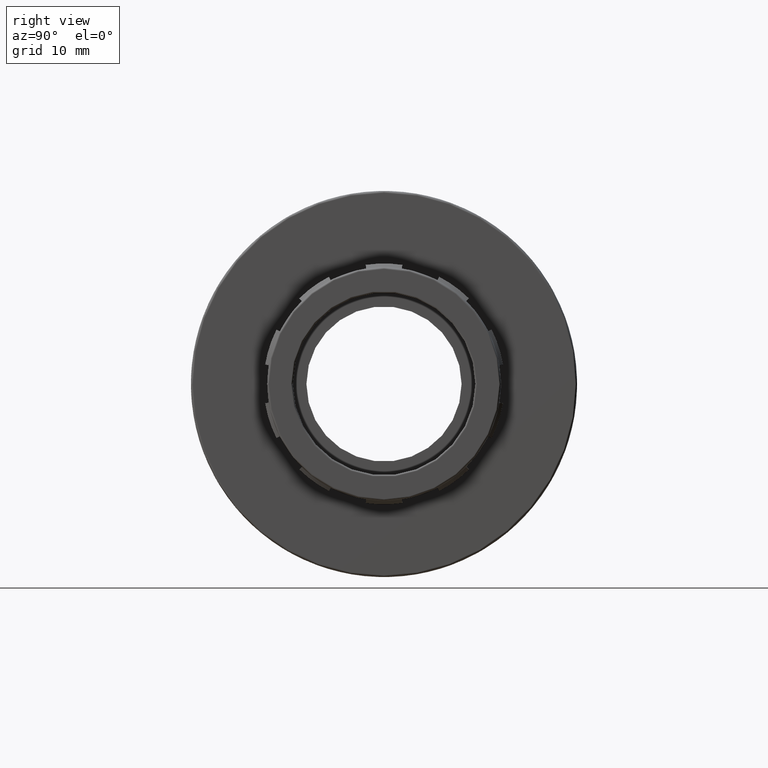
[diagram: clean part render]
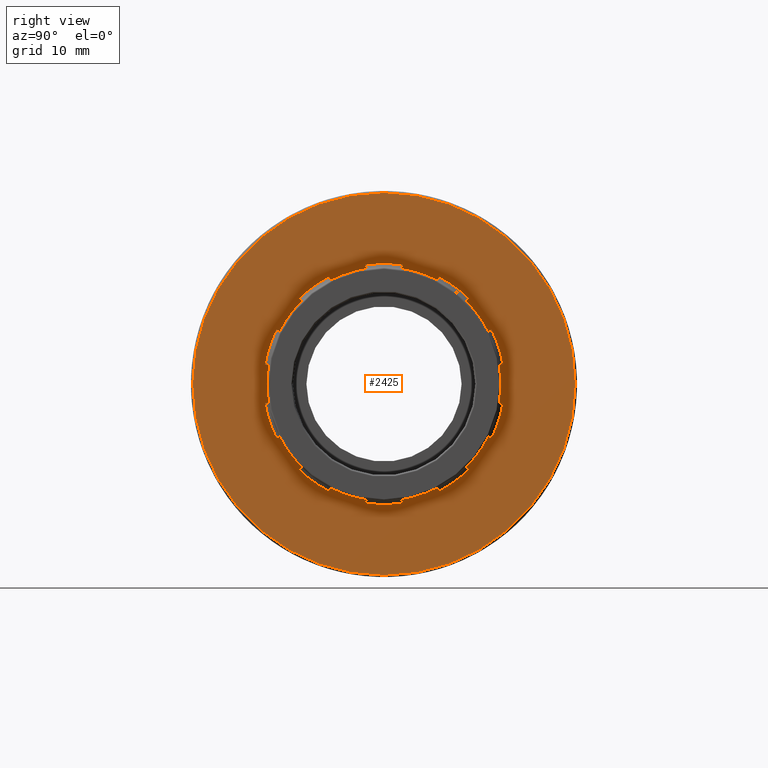
[diagram: same view with one face highlighted and labeled with its STEP entity id]
A machine part, right view. The second image highlights one B-rep face of the part: STEP entity #2425.
In plain terms, the highlighted planar face has unit normal (1, 0, 0).
Its self-contained STEP definition (entity closure, byte-faithful):
#49=FACE_BOUND('',#454,.T.);
#152=CIRCLE('',#2603,15.91722);
#153=CIRCLE('',#2605,15.91722);
#155=CIRCLE('',#2608,15.91722);
#157=CIRCLE('',#2611,15.91722);
#159=CIRCLE('',#2614,15.91722);
#161=CIRCLE('',#2617,15.91722);
#163=CIRCLE('',#2620,15.91722);
#165=CIRCLE('',#2623,15.91722);
#167=CIRCLE('',#2626,15.91722);
#180=CIRCLE('',#2650,15.91722);
#181=CIRCLE('',#2653,25.25883);
#182=CIRCLE('',#2655,15.43488);
#183=CIRCLE('',#2656,15.43488);
#184=CIRCLE('',#2657,15.43488);
#185=CIRCLE('',#2658,15.43488);
#186=CIRCLE('',#2659,15.43488);
#187=CIRCLE('',#2660,15.43488);
#188=CIRCLE('',#2661,15.43488);
#189=CIRCLE('',#2662,15.43488);
#190=CIRCLE('',#2663,15.43488);
#191=CIRCLE('',#2664,15.43488);
#319=FACE_OUTER_BOUND('',#453,.T.);
#453=EDGE_LOOP('',(#2031));
#454=EDGE_LOOP('',(#2032,#2033,#2034,#2035,#2036,#2037,#2038,#2039,#2040,
#2041,#2042,#2043,#2044,#2045,#2046,#2047,#2048,#2049,#2050,#2051,#2052,
#2053,#2054,#2055,#2056,#2057,#2058,#2059,#2060,#2061,#2062,#2063,#2064,
#2065,#2066,#2067,#2068,#2069,#2070,#2071));
#642=LINE('',#3868,#868);
#646=LINE('',#3877,#872);
#650=LINE('',#3886,#876);
#654=LINE('',#3895,#880);
#658=LINE('',#3904,#884);
#662=LINE('',#3913,#888);
#666=LINE('',#3922,#892);
#670=LINE('',#3931,#896);
#674=LINE('',#3940,#900);
#678=LINE('',#3949,#904);
#682=LINE('',#3958,#908);
#686=LINE('',#3967,#912);
#690=LINE('',#3976,#916);
#694=LINE('',#3985,#920);
#698=LINE('',#3994,#924);
#702=LINE('',#4003,#928);
#706=LINE('',#4012,#932);
#710=LINE('',#4021,#936);
#717=LINE('',#4086,#943);
#718=LINE('',#4102,#944);
#868=VECTOR('',#3121,0.48234000000001);
#872=VECTOR('',#3127,0.48234000000001);
#876=VECTOR('',#3133,0.48234000000001);
#880=VECTOR('',#3139,0.48234000000001);
#884=VECTOR('',#3145,0.48234000000001);
#888=VECTOR('',#3151,0.48234000000001);
#892=VECTOR('',#3157,0.48234000000001);
#896=VECTOR('',#3163,0.48234000000001);
#900=VECTOR('',#3169,0.48234000000001);
#904=VECTOR('',#3175,0.48234000000001);
#908=VECTOR('',#3181,0.48234000000001);
#912=VECTOR('',#3187,0.48234000000001);
#916=VECTOR('',#3193,0.48234000000001);
#920=VECTOR('',#3199,0.48234000000001);
#924=VECTOR('',#3205,0.48234000000001);
#928=VECTOR('',#3211,0.48234000000001);
#932=VECTOR('',#3217,0.48234000000001);
#936=VECTOR('',#3223,0.48234000000001);
#943=VECTOR('',#3332,0.48234000000001);
#944=VECTOR('',#3359,0.48234000000001);
#1090=VERTEX_POINT('',#3865);
#1091=VERTEX_POINT('',#3867);
#1094=VERTEX_POINT('',#3874);
#1095=VERTEX_POINT('',#3876);
#1098=VERTEX_POINT('',#3883);
#1099=VERTEX_POINT('',#3885);
#1102=VERTEX_POINT('',#3892);
#1103=VERTEX_POINT('',#3894);
#1106=VERTEX_POINT('',#3901);
#1107=VERTEX_POINT('',#3903);
#1110=VERTEX_POINT('',#3910);
#1111=VERTEX_POINT('',#3912);
#1114=VERTEX_POINT('',#3919);
#1115=VERTEX_POINT('',#3921);
#1118=VERTEX_POINT('',#3928);
#1119=VERTEX_POINT('',#3930);
#1122=VERTEX_POINT('',#3937);
#1123=VERTEX_POINT('',#3939);
#1126=VERTEX_POINT('',#3946);
#1127=VERTEX_POINT('',#3948);
#1130=VERTEX_POINT('',#3955);
#1131=VERTEX_POINT('',#3957);
#1134=VERTEX_POINT('',#3964);
#1135=VERTEX_POINT('',#3966);
#1138=VERTEX_POINT('',#3973);
#1139=VERTEX_POINT('',#3975);
#1142=VERTEX_POINT('',#3982);
#1143=VERTEX_POINT('',#3984);
#1146=VERTEX_POINT('',#3991);
#1147=VERTEX_POINT('',#3993);
#1150=VERTEX_POINT('',#4000);
#1151=VERTEX_POINT('',#4002);
#1154=VERTEX_POINT('',#4009);
#1155=VERTEX_POINT('',#4011);
#1158=VERTEX_POINT('',#4018);
#1159=VERTEX_POINT('',#4020);
#1161=VERTEX_POINT('',#4026);
#1162=VERTEX_POINT('',#4030);
#1166=VERTEX_POINT('',#4084);
#1167=VERTEX_POINT('',#4088);
#1168=VERTEX_POINT('',#4100);
#1397=EDGE_CURVE('',#1090,#1091,#642,.T.);
#1401=EDGE_CURVE('',#1094,#1095,#646,.T.);
#1405=EDGE_CURVE('',#1098,#1099,#650,.T.);
#1409=EDGE_CURVE('',#1102,#1103,#654,.T.);
#1413=EDGE_CURVE('',#1106,#1107,#658,.T.);
#1417=EDGE_CURVE('',#1110,#1111,#662,.T.);
#1421=EDGE_CURVE('',#1114,#1115,#666,.T.);
#1425=EDGE_CURVE('',#1118,#1119,#670,.T.);
#1429=EDGE_CURVE('',#1122,#1123,#674,.T.);
#1433=EDGE_CURVE('',#1126,#1127,#678,.T.);
#1437=EDGE_CURVE('',#1130,#1131,#682,.T.);
#1441=EDGE_CURVE('',#1134,#1135,#686,.T.);
#1445=EDGE_CURVE('',#1138,#1139,#690,.T.);
#1449=EDGE_CURVE('',#1142,#1143,#694,.T.);
#1453=EDGE_CURVE('',#1146,#1147,#698,.T.);
#1457=EDGE_CURVE('',#1150,#1151,#702,.T.);
#1461=EDGE_CURVE('',#1154,#1155,#706,.T.);
#1465=EDGE_CURVE('',#1158,#1159,#710,.T.);
#1469=EDGE_CURVE('',#1090,#1161,#152,.T.);
#1470=EDGE_CURVE('',#1162,#1159,#153,.T.);
#1473=EDGE_CURVE('',#1154,#1151,#155,.T.);
#1475=EDGE_CURVE('',#1146,#1143,#157,.T.);
#1477=EDGE_CURVE('',#1138,#1135,#159,.T.);
#1479=EDGE_CURVE('',#1130,#1127,#161,.T.);
#1481=EDGE_CURVE('',#1122,#1119,#163,.T.);
#1483=EDGE_CURVE('',#1114,#1111,#165,.T.);
#1485=EDGE_CURVE('',#1106,#1103,#167,.T.);
#1500=EDGE_CURVE('',#1098,#1095,#180,.T.);
#1502=EDGE_CURVE('',#1166,#1161,#717,.T.);
#1503=EDGE_CURVE('',#1167,#1167,#181,.T.);
#1504=EDGE_CURVE('',#1155,#1158,#182,.T.);
#1505=EDGE_CURVE('',#1147,#1150,#183,.T.);
#1506=EDGE_CURVE('',#1139,#1142,#184,.T.);
#1507=EDGE_CURVE('',#1131,#1134,#185,.T.);
#1508=EDGE_CURVE('',#1123,#1126,#186,.T.);
#1509=EDGE_CURVE('',#1115,#1118,#187,.T.);
#1510=EDGE_CURVE('',#1107,#1110,#188,.T.);
#1511=EDGE_CURVE('',#1099,#1102,#189,.T.);
#1512=EDGE_CURVE('',#1091,#1094,#190,.T.);
#1513=EDGE_CURVE('',#1168,#1166,#191,.T.);
#1514=EDGE_CURVE('',#1162,#1168,#718,.T.);
#2031=ORIENTED_EDGE('',*,*,#1503,.F.);
#2032=ORIENTED_EDGE('',*,*,#1470,.T.);
#2033=ORIENTED_EDGE('',*,*,#1465,.F.);
#2034=ORIENTED_EDGE('',*,*,#1504,.F.);
#2035=ORIENTED_EDGE('',*,*,#1461,.F.);
#2036=ORIENTED_EDGE('',*,*,#1473,.T.);
#2037=ORIENTED_EDGE('',*,*,#1457,.F.);
#2038=ORIENTED_EDGE('',*,*,#1505,.F.);
#2039=ORIENTED_EDGE('',*,*,#1453,.F.);
#2040=ORIENTED_EDGE('',*,*,#1475,.T.);
#2041=ORIENTED_EDGE('',*,*,#1449,.F.);
#2042=ORIENTED_EDGE('',*,*,#1506,.F.);
#2043=ORIENTED_EDGE('',*,*,#1445,.F.);
#2044=ORIENTED_EDGE('',*,*,#1477,.T.);
#2045=ORIENTED_EDGE('',*,*,#1441,.F.);
#2046=ORIENTED_EDGE('',*,*,#1507,.F.);
#2047=ORIENTED_EDGE('',*,*,#1437,.F.);
#2048=ORIENTED_EDGE('',*,*,#1479,.T.);
#2049=ORIENTED_EDGE('',*,*,#1433,.F.);
#2050=ORIENTED_EDGE('',*,*,#1508,.F.);
#2051=ORIENTED_EDGE('',*,*,#1429,.F.);
#2052=ORIENTED_EDGE('',*,*,#1481,.T.);
#2053=ORIENTED_EDGE('',*,*,#1425,.F.);
#2054=ORIENTED_EDGE('',*,*,#1509,.F.);
#2055=ORIENTED_EDGE('',*,*,#1421,.F.);
#2056=ORIENTED_EDGE('',*,*,#1483,.T.);
#2057=ORIENTED_EDGE('',*,*,#1417,.F.);
#2058=ORIENTED_EDGE('',*,*,#1510,.F.);
#2059=ORIENTED_EDGE('',*,*,#1413,.F.);
#2060=ORIENTED_EDGE('',*,*,#1485,.T.);
#2061=ORIENTED_EDGE('',*,*,#1409,.F.);
#2062=ORIENTED_EDGE('',*,*,#1511,.F.);
#2063=ORIENTED_EDGE('',*,*,#1405,.F.);
#2064=ORIENTED_EDGE('',*,*,#1500,.T.);
#2065=ORIENTED_EDGE('',*,*,#1401,.F.);
#2066=ORIENTED_EDGE('',*,*,#1512,.F.);
#2067=ORIENTED_EDGE('',*,*,#1397,.F.);
#2068=ORIENTED_EDGE('',*,*,#1469,.T.);
#2069=ORIENTED_EDGE('',*,*,#1502,.F.);
#2070=ORIENTED_EDGE('',*,*,#1513,.F.);
#2071=ORIENTED_EDGE('',*,*,#1514,.F.);
#2305=PLANE('',#2654);
#2425=ADVANCED_FACE('',(#319,#49),#2305,.T.);
#2603=AXIS2_PLACEMENT_3D('',#4028,#3230,#3231);
#2605=AXIS2_PLACEMENT_3D('',#4031,#3234,#3235);
#2608=AXIS2_PLACEMENT_3D('',#4036,#3241,#3242);
#2611=AXIS2_PLACEMENT_3D('',#4039,#3247,#3248);
#2614=AXIS2_PLACEMENT_3D('',#4042,#3253,#3254);
#2617=AXIS2_PLACEMENT_3D('',#4045,#3259,#3260);
#2620=AXIS2_PLACEMENT_3D('',#4048,#3265,#3266);
#2623=AXIS2_PLACEMENT_3D('',#4051,#3271,#3272);
#2626=AXIS2_PLACEMENT_3D('',#4054,#3277,#3278);
#2650=AXIS2_PLACEMENT_3D('',#4082,#3327,#3328);
#2653=AXIS2_PLACEMENT_3D('',#4089,#3335,#3336);
#2654=AXIS2_PLACEMENT_3D('',#4090,#3337,#3338);
#2655=AXIS2_PLACEMENT_3D('',#4091,#3339,#3340);
#2656=AXIS2_PLACEMENT_3D('',#4092,#3341,#3342);
#2657=AXIS2_PLACEMENT_3D('',#4093,#3343,#3344);
#2658=AXIS2_PLACEMENT_3D('',#4094,#3345,#3346);
#2659=AXIS2_PLACEMENT_3D('',#4095,#3347,#3348);
#2660=AXIS2_PLACEMENT_3D('',#4096,#3349,#3350);
#2661=AXIS2_PLACEMENT_3D('',#4097,#3351,#3352);
#2662=AXIS2_PLACEMENT_3D('',#4098,#3353,#3354);
#2663=AXIS2_PLACEMENT_3D('',#4099,#3355,#3356);
#2664=AXIS2_PLACEMENT_3D('',#4101,#3357,#3358);
#3121=DIRECTION('',(1.65477713622156E-16,-0.892733153817184,-0.450585747750219));
#3127=DIRECTION('',(-1.33846636034289E-16,0.704402227519023,0.709801029772597));
#3133=DIRECTION('',(9.23595247601189E-17,-0.457388635459291,-0.889266909399359));
#3139=DIRECTION('',(-4.11793661221641E-17,0.152662795576115,0.988278336728518));
#3145=DIRECTION('',(-1.01015236028076E-17,0.152662795576116,-0.988278336728518));
#3151=DIRECTION('',(6.12816822407623E-17,-0.457388635459292,0.889266909399359));
#3157=DIRECTION('',(-1.02768793514932E-16,0.704402227519024,-0.709801029772596));
#3163=DIRECTION('',(1.343998711028E-16,-0.892733153817185,0.450585747750218));
#3169=DIRECTION('',(-1.50246537514483E-16,0.987083950300801,-0.160203854693218));
#3175=DIRECTION('',(1.50246537514483E-16,-0.987083950300801,-0.16020385469322));
#3181=DIRECTION('',(-1.34399871102799E-16,0.892733153817184,0.450585747750219));
#3187=DIRECTION('',(1.02768793514932E-16,-0.704402227519023,-0.709801029772597));
#3193=DIRECTION('',(-6.12816822407621E-17,0.457388635459291,0.889266909399359));
#3199=DIRECTION('',(1.01015236028073E-17,-0.152662795576115,-0.988278336728518));
#3205=DIRECTION('',(4.11793661221643E-17,-0.152662795576116,0.988278336728518));
#3211=DIRECTION('',(-9.23595247601191E-17,0.457388635459292,-0.889266909399359));
#3217=DIRECTION('',(1.33846636034289E-16,-0.704402227519024,0.709801029772596));
#3223=DIRECTION('',(-1.65477713622156E-16,0.892733153817185,-0.450585747750218));
#3230=DIRECTION('center_axis',(-1.,-1.83697019872103E-16,0.));
#3231=DIRECTION('ref_axis',(0.,0.,1.));
#3234=DIRECTION('center_axis',(-1.,-1.83697019872103E-16,0.));
#3235=DIRECTION('ref_axis',(0.,0.,1.));
#3241=DIRECTION('center_axis',(-1.,-1.83697019872103E-16,0.));
#3242=DIRECTION('ref_axis',(0.,0.,1.));
#3247=DIRECTION('center_axis',(-1.,-1.83697019872103E-16,0.));
#3248=DIRECTION('ref_axis',(0.,0.,1.));
#3253=DIRECTION('center_axis',(-1.,-1.83697019872103E-16,0.));
#3254=DIRECTION('ref_axis',(0.,0.,1.));
#3259=DIRECTION('center_axis',(-1.,-1.83697019872103E-16,0.));
#3260=DIRECTION('ref_axis',(0.,0.,1.));
#3265=DIRECTION('center_axis',(-1.,-1.83697019872103E-16,0.));
#3266=DIRECTION('ref_axis',(0.,0.,1.));
#3271=DIRECTION('center_axis',(-1.,-1.83697019872103E-16,0.));
#3272=DIRECTION('ref_axis',(0.,0.,1.));
#3277=DIRECTION('center_axis',(-1.,-1.83697019872103E-16,0.));
#3278=DIRECTION('ref_axis',(0.,0.,1.));
#3327=DIRECTION('center_axis',(-1.,-1.83697019872103E-16,0.));
#3328=DIRECTION('ref_axis',(0.,0.,1.));
#3332=DIRECTION('',(-1.8132438003384E-16,0.987083950300801,0.16020385469322));
#3335=DIRECTION('center_axis',(-1.,-1.83697019872103E-16,0.));
#3336=DIRECTION('ref_axis',(-1.83697019872103E-16,1.,6.12323399573677E-17));
#3337=DIRECTION('center_axis',(1.,1.83697019872103E-16,0.));
#3338=DIRECTION('ref_axis',(0.,0.,-1.));
#3339=DIRECTION('center_axis',(1.,1.80690517856302E-16,-9.25306175851568E-18));
#3340=DIRECTION('ref_axis',(-9.87213374123839E-17,0.587785252292473,0.809016994374947));
#3341=DIRECTION('center_axis',(1.,1.72819393391689E-16,-1.49717684252802E-17));
#3342=DIRECTION('ref_axis',(-1.59734479348084E-16,0.951056516295154,0.309016994374948));
#3343=DIRECTION('center_axis',(1.,1.63090148494066E-16,-1.49717684252802E-17));
#3344=DIRECTION('ref_axis',(-1.59734479348084E-16,0.951056516295154,-0.309016994374947));
#3345=DIRECTION('center_axis',(1.,1.55219024029453E-16,-9.2530617585157E-18));
#3346=DIRECTION('ref_axis',(-9.87213374123839E-17,0.587785252292473,-0.809016994374947));
#3347=DIRECTION('center_axis',(1.,1.52212522013652E-16,-7.70371977754894E-33));
#3348=DIRECTION('ref_axis',(0.,2.15788465726683E-16,-1.));
#3349=DIRECTION('center_axis',(1.,1.55219024029453E-16,9.25306175851568E-18));
#3350=DIRECTION('ref_axis',(9.87213374123838E-17,-0.587785252292473,-0.809016994374947));
#3351=DIRECTION('center_axis',(1.,1.63090148494066E-16,1.49717684252803E-17));
#3352=DIRECTION('ref_axis',(1.59734479348084E-16,-0.951056516295154,-0.309016994374948));
#3353=DIRECTION('center_axis',(1.,1.72819393391689E-16,1.49717684252803E-17));
#3354=DIRECTION('ref_axis',(1.59734479348084E-16,-0.951056516295154,0.309016994374947));
#3355=DIRECTION('center_axis',(1.,1.80690517856302E-16,9.2530617585157E-18));
#3356=DIRECTION('ref_axis',(9.87213374123839E-17,-0.587785252292473,0.809016994374947));
#3357=DIRECTION('center_axis',(1.,1.83697019872103E-16,0.));
#3358=DIRECTION('ref_axis',(0.,0.,1.));
#3359=DIRECTION('',(1.8132438003384E-16,-0.987083950300801,0.160203854693218));
#3865=CARTESIAN_POINT('',(17.9,14.209830010602,7.17207247580474));
#3867=CARTESIAN_POINT('',(17.9,13.7792291011898,6.9547369462349));
#3868=CARTESIAN_POINT('',(17.9,13.9678841393462,7.04995607310507));
#3874=CARTESIAN_POINT('',(17.9,10.8723638534888,10.9556937184165));
#3876=CARTESIAN_POINT('',(17.9,11.2121252239104,11.298059147117));
#3877=CARTESIAN_POINT('',(17.9,10.8513395522287,10.9345082790443));
#3883=CARTESIAN_POINT('',(17.9,7.28035553610535,14.1546570356297));
#3885=CARTESIAN_POINT('',(17.9,7.05973870167792,13.72572803455));
#3886=CARTESIAN_POINT('',(17.9,7.15639543511041,13.9136505755765));
#3892=CARTESIAN_POINT('',(17.9,2.35633193018188,15.2539575340043));
#3894=CARTESIAN_POINT('',(17.9,2.42996730300007,15.7306437069419));
#3895=CARTESIAN_POINT('',(17.9,2.35177540199384,15.2244603792984));
#3901=CARTESIAN_POINT('',(17.9,-2.42996730300006,15.7306437069419));
#3903=CARTESIAN_POINT('',(17.9,-2.35633193018187,15.2539575340043));
#3904=CARTESIAN_POINT('',(17.9,-2.38859308840292,15.4628034657672));
#3910=CARTESIAN_POINT('',(17.9,-7.0597387016779,13.72572803455));
#3912=CARTESIAN_POINT('',(17.9,-7.28035553610534,14.1546570356297));
#3913=CARTESIAN_POINT('',(17.9,-7.04608701789668,13.6991860750366));
#3919=CARTESIAN_POINT('',(17.9,-11.2121252239104,11.298059147117));
#3921=CARTESIAN_POINT('',(17.9,-10.8723638534888,10.9556937184165));
#3922=CARTESIAN_POINT('',(17.9,-11.0212202374394,11.1056909933945));
#3928=CARTESIAN_POINT('',(17.9,-13.7792291011898,6.95473694623489));
#3930=CARTESIAN_POINT('',(17.9,-14.209830010602,7.17207247580474));
#3931=CARTESIAN_POINT('',(17.9,-13.75258368464,6.94128830832014));
#3937=CARTESIAN_POINT('',(17.9,-15.7116323954069,2.55));
#3939=CARTESIAN_POINT('',(17.9,-15.2355223228188,2.47272727272727));
#3940=CARTESIAN_POINT('',(17.9,-15.4441158532722,2.50658203009874));
#3946=CARTESIAN_POINT('',(17.9,-15.2355223228188,-2.47272727272727));
#3948=CARTESIAN_POINT('',(17.9,-15.7116323954069,-2.55));
#3949=CARTESIAN_POINT('',(17.9,-15.2060608169782,-2.46794566646237));
#3955=CARTESIAN_POINT('',(17.9,-14.209830010602,-7.17207247580474));
#3957=CARTESIAN_POINT('',(17.9,-13.7792291011898,-6.9547369462349));
#3958=CARTESIAN_POINT('',(17.9,-13.9678841393461,-7.04995607310507));
#3964=CARTESIAN_POINT('',(17.9,-10.8723638534888,-10.9556937184165));
#3966=CARTESIAN_POINT('',(17.9,-11.2121252239104,-11.298059147117));
#3967=CARTESIAN_POINT('',(17.9,-10.8513395522286,-10.9345082790443));
#3973=CARTESIAN_POINT('',(17.9,-7.28035553610534,-14.1546570356297));
#3975=CARTESIAN_POINT('',(17.9,-7.0597387016779,-13.72572803455));
#3976=CARTESIAN_POINT('',(17.9,-7.15639543511039,-13.9136505755765));
#3982=CARTESIAN_POINT('',(17.9,-2.35633193018187,-15.2539575340043));
#3984=CARTESIAN_POINT('',(17.9,-2.42996730300005,-15.7306437069419));
#3985=CARTESIAN_POINT('',(17.9,-2.35177540199382,-15.2244603792984));
#3991=CARTESIAN_POINT('',(17.9,2.42996730300007,-15.7306437069419));
#3993=CARTESIAN_POINT('',(17.9,2.35633193018189,-15.2539575340043));
#3994=CARTESIAN_POINT('',(17.9,2.38859308840293,-15.4628034657672));
#4000=CARTESIAN_POINT('',(17.9,7.05973870167792,-13.72572803455));
#4002=CARTESIAN_POINT('',(17.9,7.28035553610536,-14.1546570356297));
#4003=CARTESIAN_POINT('',(17.9,7.04608701789669,-13.6991860750366));
#4009=CARTESIAN_POINT('',(17.9,11.2121252239104,-11.298059147117));
#4011=CARTESIAN_POINT('',(17.9,10.8723638534888,-10.9556937184165));
#4012=CARTESIAN_POINT('',(17.9,11.0212202374394,-11.1056909933945));
#4018=CARTESIAN_POINT('',(17.9,13.7792291011898,-6.95473694623489));
#4020=CARTESIAN_POINT('',(17.9,14.209830010602,-7.17207247580474));
#4021=CARTESIAN_POINT('',(17.9,13.7525836846401,-6.94128830832014));
#4026=CARTESIAN_POINT('',(17.9,15.7116323954069,2.55));
#4028=CARTESIAN_POINT('Origin',(17.9,9.19403584459876E-15,0.));
#4030=CARTESIAN_POINT('',(17.9,15.7116323954069,-2.55));
#4031=CARTESIAN_POINT('Origin',(17.9,9.19403584459876E-15,0.));
#4036=CARTESIAN_POINT('Origin',(17.9,9.19403584459876E-15,0.));
#4039=CARTESIAN_POINT('Origin',(17.9,9.19403584459876E-15,0.));
#4042=CARTESIAN_POINT('Origin',(17.9,9.19403584459876E-15,0.));
#4045=CARTESIAN_POINT('Origin',(17.9,9.19403584459876E-15,0.));
#4048=CARTESIAN_POINT('Origin',(17.9,9.19403584459876E-15,0.));
#4051=CARTESIAN_POINT('Origin',(17.9,9.19403584459876E-15,0.));
#4054=CARTESIAN_POINT('Origin',(17.9,9.19403584459876E-15,0.));
#4082=CARTESIAN_POINT('Origin',(17.9,9.19403584459876E-15,0.));
#4084=CARTESIAN_POINT('',(17.9,15.2355223228188,2.47272727272727));
#4086=CARTESIAN_POINT('',(17.9,15.2060608169782,2.46794566646237));
#4088=CARTESIAN_POINT('',(17.9,-25.25883,1.54665726548536E-15));
#4089=CARTESIAN_POINT('Origin',(17.9,9.19403584459876E-15,0.));
#4090=CARTESIAN_POINT('Origin',(17.9,-25.5,0.));
#4091=CARTESIAN_POINT('Origin',(17.9,8.65281257715454E-15,4.63847748278783E-16));
#4092=CARTESIAN_POINT('Origin',(17.9,9.04738503918016E-15,7.50521422320178E-16));
#4093=CARTESIAN_POINT('Origin',(17.9,9.53510342429328E-15,7.50521422320177E-16));
#4094=CARTESIAN_POINT('Origin',(17.9,9.92967588631891E-15,4.63847748278782E-16));
#4095=CARTESIAN_POINT('Origin',(17.9,1.0080389155788E-14,0.));
#4096=CARTESIAN_POINT('Origin',(17.9,9.92967588631891E-15,-4.63847748278786E-16));
#4097=CARTESIAN_POINT('Origin',(17.9,9.53510342429328E-15,-7.50521422320178E-16));
#4098=CARTESIAN_POINT('Origin',(17.9,9.04738503918016E-15,-7.50521422320179E-16));
#4099=CARTESIAN_POINT('Origin',(17.9,8.65281257715454E-15,-4.63847748278783E-16));
#4100=CARTESIAN_POINT('',(17.9,15.2355223228188,-2.47272727272727));
#4101=CARTESIAN_POINT('Origin',(17.9,8.50209930768548E-15,0.));
#4102=CARTESIAN_POINT('',(17.9,15.4441158532722,-2.50658203009874));